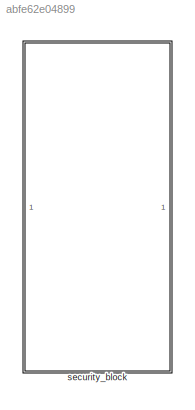
MODEL slx_abfe62e04899
KIND library
CONFIG AbsTol = auto
CONFIG EnableMultiTasking = off
CONFIG FixedStep = auto
CONFIG MaxStep = auto
CONFIG MinStep = auto
CONFIG RelTol = 1e-3
CONFIG SampleTimeConstraint = Unconstrained
CONFIG SolverName = VariableStepAuto
CONFIG StartTime = 0.0
CONFIG StopTime = 10.0
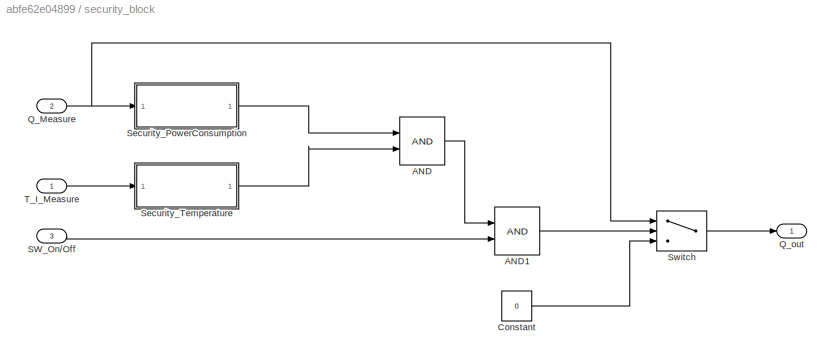
BLOCK [SubSystem] security_block
BLOCK [Logic] security_block/AND
  AllPortsSameDT = off
  IconShape = distinctive
  OutDataTypeStr = boolean
BLOCK [Logic] security_block/AND1
  AllPortsSameDT = off
  IconShape = distinctive
  OutDataTypeStr = boolean
BLOCK [Constant] security_block/Constant
  Value = 0
BLOCK [Inport] security_block/Q_Measure
  Port = 2
BLOCK [Outport] security_block/Q_out
BLOCK [Inport] security_block/SW_On//Off
  Port = 3
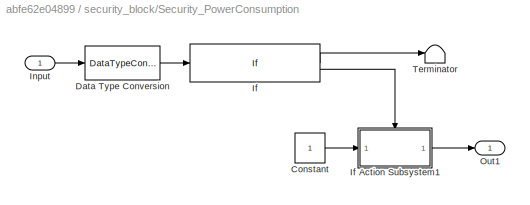
BLOCK [SubSystem] security_block/Security_PowerConsumption
BLOCK [Constant] security_block/Security_PowerConsumption/Constant
BLOCK [DataTypeConversion] security_block/Security_PowerConsumption/Data Type Conversion
  OutDataTypeStr = int32
  RndMeth = Floor
  SaturateOnIntegerOverflow = off
BLOCK [If] security_block/Security_PowerConsumption/If
  IfExpression = u1 < Q_min | u1 > Q_max
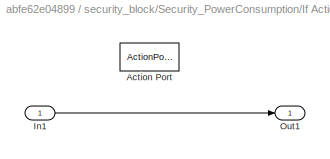
BLOCK [SubSystem] security_block/Security_PowerConsumption/If Action Subsystem1
  TreatAsAtomicUnit = on
BLOCK [ActionPort] security_block/Security_PowerConsumption/If Action Subsystem1/Action Port
  ActionPortLabel = else
BLOCK [Inport] security_block/Security_PowerConsumption/If Action Subsystem1/In1
BLOCK [Outport] security_block/Security_PowerConsumption/If Action Subsystem1/Out1
BLOCK [Inport] security_block/Security_PowerConsumption/Input
BLOCK [Outport] security_block/Security_PowerConsumption/Out1
BLOCK [Terminator] security_block/Security_PowerConsumption/Terminator
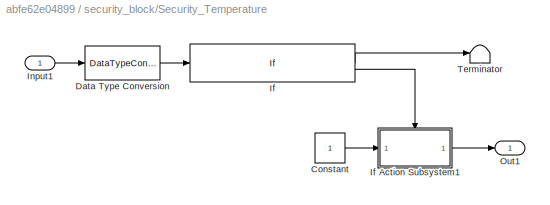
BLOCK [SubSystem] security_block/Security_Temperature
BLOCK [Constant] security_block/Security_Temperature/Constant
BLOCK [DataTypeConversion] security_block/Security_Temperature/Data Type Conversion
  OutDataTypeStr = int32
  RndMeth = Floor
  SaturateOnIntegerOverflow = off
BLOCK [If] security_block/Security_Temperature/If
  IfExpression = u1 <  Temp_min | u1 > Temp_max
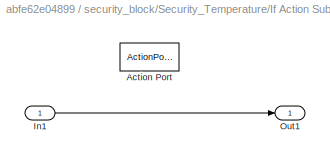
BLOCK [SubSystem] security_block/Security_Temperature/If Action Subsystem1
  TreatAsAtomicUnit = on
BLOCK [ActionPort] security_block/Security_Temperature/If Action Subsystem1/Action Port
  ActionPortLabel = else
BLOCK [Inport] security_block/Security_Temperature/If Action Subsystem1/In1
BLOCK [Outport] security_block/Security_Temperature/If Action Subsystem1/Out1
BLOCK [Inport] security_block/Security_Temperature/Input1
BLOCK [Outport] security_block/Security_Temperature/Out1
BLOCK [Terminator] security_block/Security_Temperature/Terminator
BLOCK [Switch] security_block/Switch
  Criteria = u2 > Threshold
  InputSameDT = off
  SaturateOnIntegerOverflow = off
BLOCK [Inport] security_block/T_I_Measure
LINE security_block/AND1:1 -> security_block/Switch:2
LINE security_block/AND:1 -> security_block/AND1:1
LINE security_block/Constant:1 -> security_block/Switch:3
NET security_block/Q_Measure:1 -> security_block/Security_PowerConsumption:1, security_block/Switch:1
LINE security_block/SW_On//Off:1 -> security_block/AND1:2
LINE security_block/Security_PowerConsumption/Constant:1 -> security_block/Security_PowerConsumption/If Action Subsystem1:1
LINE security_block/Security_PowerConsumption/Data Type Conversion:1 -> security_block/Security_PowerConsumption/If:1
LINE security_block/Security_PowerConsumption/If Action Subsystem1/In1:1 -> security_block/Security_PowerConsumption/If Action Subsystem1/Out1:1
LINE security_block/Security_PowerConsumption/If Action Subsystem1:1 -> security_block/Security_PowerConsumption/Out1:1
LINE security_block/Security_PowerConsumption/If:1 -> security_block/Security_PowerConsumption/Terminator:1
LINE security_block/Security_PowerConsumption/If:2 -> security_block/Security_PowerConsumption/If Action Subsystem1:ifaction
LINE security_block/Security_PowerConsumption/Input:1 -> security_block/Security_PowerConsumption/Data Type Conversion:1
LINE security_block/Security_PowerConsumption:1 -> security_block/AND:1
LINE security_block/Security_Temperature/Constant:1 -> security_block/Security_Temperature/If Action Subsystem1:1
LINE security_block/Security_Temperature/Data Type Conversion:1 -> security_block/Security_Temperature/If:1
LINE security_block/Security_Temperature/If Action Subsystem1/In1:1 -> security_block/Security_Temperature/If Action Subsystem1/Out1:1
LINE security_block/Security_Temperature/If Action Subsystem1:1 -> security_block/Security_Temperature/Out1:1
LINE security_block/Security_Temperature/If:1 -> security_block/Security_Temperature/Terminator:1
LINE security_block/Security_Temperature/If:2 -> security_block/Security_Temperature/If Action Subsystem1:ifaction
LINE security_block/Security_Temperature/Input1:1 -> security_block/Security_Temperature/Data Type Conversion:1
LINE security_block/Security_Temperature:1 -> security_block/AND:2
LINE security_block/Switch:1 -> security_block/Q_out:1
LINE security_block/T_I_Measure:1 -> security_block/Security_Temperature:1
note: NET lines group one-source signal fan-out (src -> all destinations, sorted); 1:1 wires keep LINE
